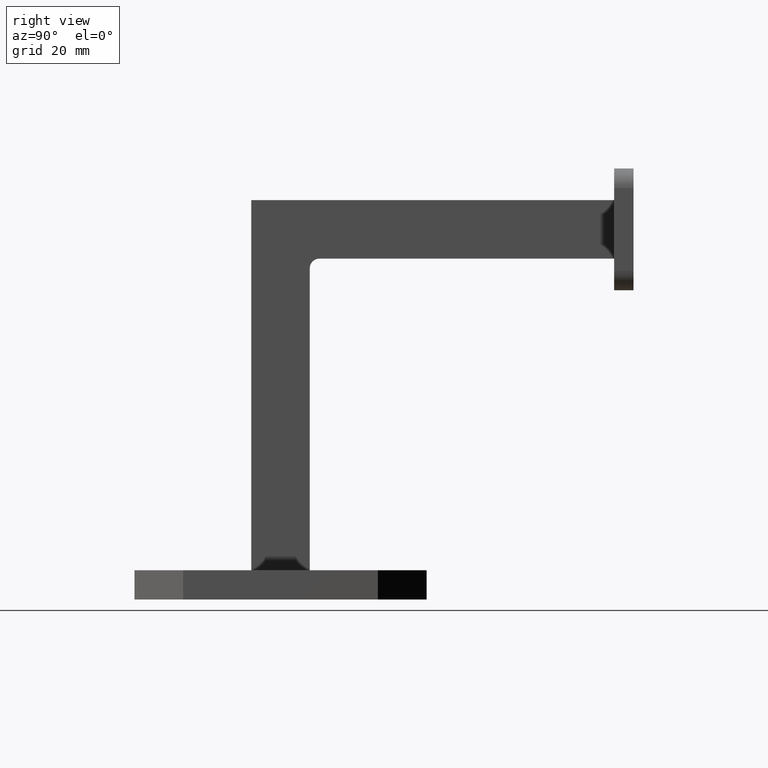
[diagram: clean part render]
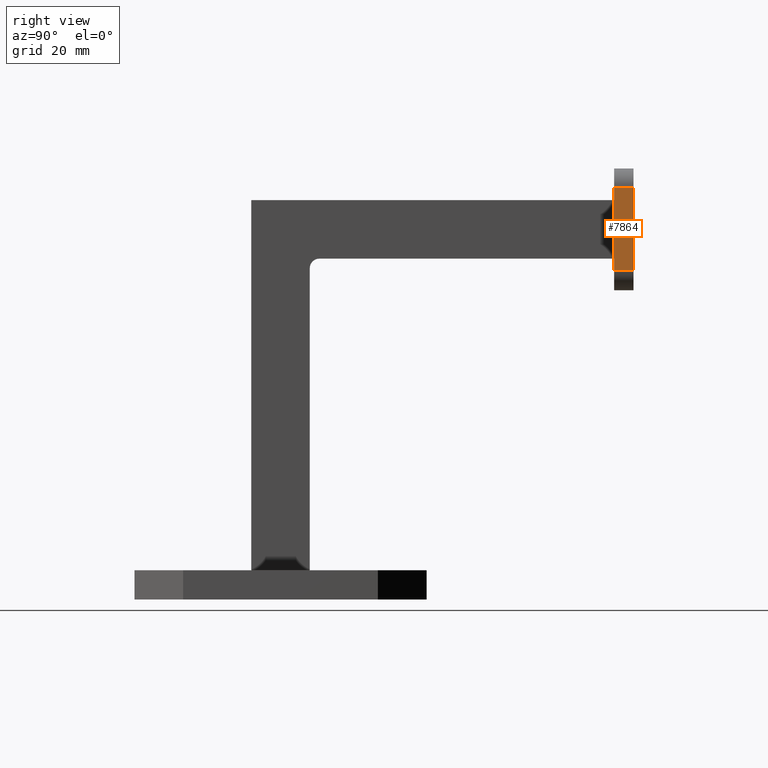
[diagram: same view with one face highlighted and labeled with its STEP entity id]
A machine part, right view. The second image highlights one B-rep face of the part: STEP entity #7864.
In plain terms, the highlighted planar face has unit normal (-1, 0, 0).
Its self-contained STEP definition (entity closure, byte-faithful):
#1320 = CARTESIAN_POINT ( 'NONE',  ( 32.50000000000000000, -2.000000000000000000, -12.50000000000000178 ) ) ;
#2286 = CARTESIAN_POINT ( 'NONE',  ( 32.50000000000000000, 2.000000000000000000, -12.50000000000000178 ) ) ;
#2389 = VECTOR ( 'NONE', #6560, 1000.000000000000000 ) ;
#3197 = VERTEX_POINT ( 'NONE', #4412 ) ;
#3402 = ORIENTED_EDGE ( 'NONE', *, *, #15074, .T. ) ;
#3661 = LINE ( 'NONE', #14375, #9215 ) ;
#4412 = CARTESIAN_POINT ( 'NONE',  ( 32.50000000000000000, -2.000000000000000000, -8.500000000000001776 ) ) ;
#6300 = ORIENTED_EDGE ( 'NONE', *, *, #17715, .T. ) ;
#6560 = DIRECTION ( 'NONE',  ( 0.000000000000000000, -1.000000000000000000, 0.000000000000000000 ) ) ;
#6625 = CARTESIAN_POINT ( 'NONE',  ( 32.50000000000000000, -2.000000000000000000, 8.499999999999998224 ) ) ;
#6783 = DIRECTION ( 'NONE',  ( 0.000000000000000000, 0.000000000000000000, 1.000000000000000000 ) ) ;
#7117 = LINE ( 'NONE', #10000, #2389 ) ;
#7864 = ADVANCED_FACE ( 'NONE', ( #15671 ), #12016, .F. ) ;
#9215 = VECTOR ( 'NONE', #18015, 1000.000000000000000 ) ;
#9508 = VECTOR ( 'NONE', #22208, 1000.000000000000000 ) ;
#10000 = CARTESIAN_POINT ( 'NONE',  ( 32.50000000000000000, 2.000000000000000000, 8.499999999999998224 ) ) ;
#10474 = EDGE_CURVE ( 'NONE', #3197, #20533, #3661, .T. ) ;
#11632 = LINE ( 'NONE', #1320, #15797 ) ;
#12016 = PLANE ( 'NONE',  #18740 ) ;
#12225 = DIRECTION ( 'NONE',  ( -0.000000000000000000, -0.000000000000000000, -1.000000000000000000 ) ) ;
#13811 = DIRECTION ( 'NONE',  ( -1.000000000000000000, 0.000000000000000000, 0.000000000000000000 ) ) ;
#14375 = CARTESIAN_POINT ( 'NONE',  ( 32.50000000000000000, 2.000000000000000000, -8.500000000000001776 ) ) ;
#15074 = EDGE_CURVE ( 'NONE', #20910, #3197, #11632, .T. ) ;
#15671 = FACE_OUTER_BOUND ( 'NONE', #16966, .T. ) ;
#15797 = VECTOR ( 'NONE', #12225, 1000.000000000000000 ) ;
#16966 = EDGE_LOOP ( 'NONE', ( #3402, #18354, #20764, #6300 ) ) ;
#17036 = LINE ( 'NONE', #2286, #9508 ) ;
#17061 = CARTESIAN_POINT ( 'NONE',  ( 32.50000000000000000, 2.000000000000000000, 8.499999999999998224 ) ) ;
#17715 = EDGE_CURVE ( 'NONE', #20186, #20910, #7117, .T. ) ;
#18015 = DIRECTION ( 'NONE',  ( -0.000000000000000000, 1.000000000000000000, -0.000000000000000000 ) ) ;
#18354 = ORIENTED_EDGE ( 'NONE', *, *, #10474, .T. ) ;
#18740 = AXIS2_PLACEMENT_3D ( 'NONE', #21045, #13811, #6783 ) ;
#19866 = EDGE_CURVE ( 'NONE', #20186, #20533, #17036, .T. ) ;
#20186 = VERTEX_POINT ( 'NONE', #17061 ) ;
#20533 = VERTEX_POINT ( 'NONE', #20832 ) ;
#20764 = ORIENTED_EDGE ( 'NONE', *, *, #19866, .F. ) ;
#20832 = CARTESIAN_POINT ( 'NONE',  ( 32.50000000000000000, 2.000000000000000000, -8.500000000000001776 ) ) ;
#20910 = VERTEX_POINT ( 'NONE', #6625 ) ;
#21045 = CARTESIAN_POINT ( 'NONE',  ( 32.50000000000000000, 2.000000000000000000, -12.50000000000000178 ) ) ;
#22208 = DIRECTION ( 'NONE',  ( -0.000000000000000000, -0.000000000000000000, -1.000000000000000000 ) ) ;